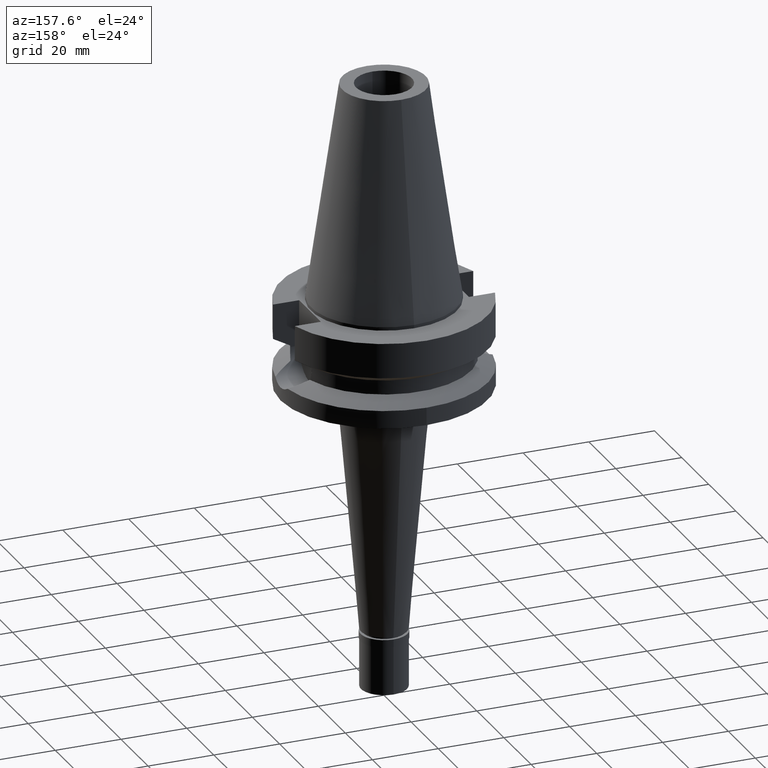
[diagram: clean part render]
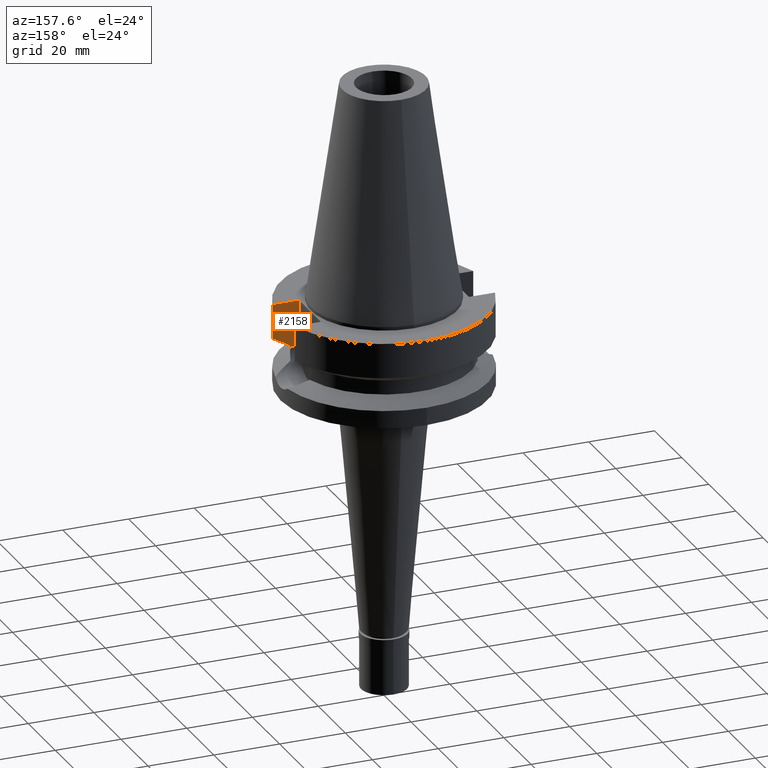
[diagram: same view with one face highlighted and labeled with its STEP entity id]
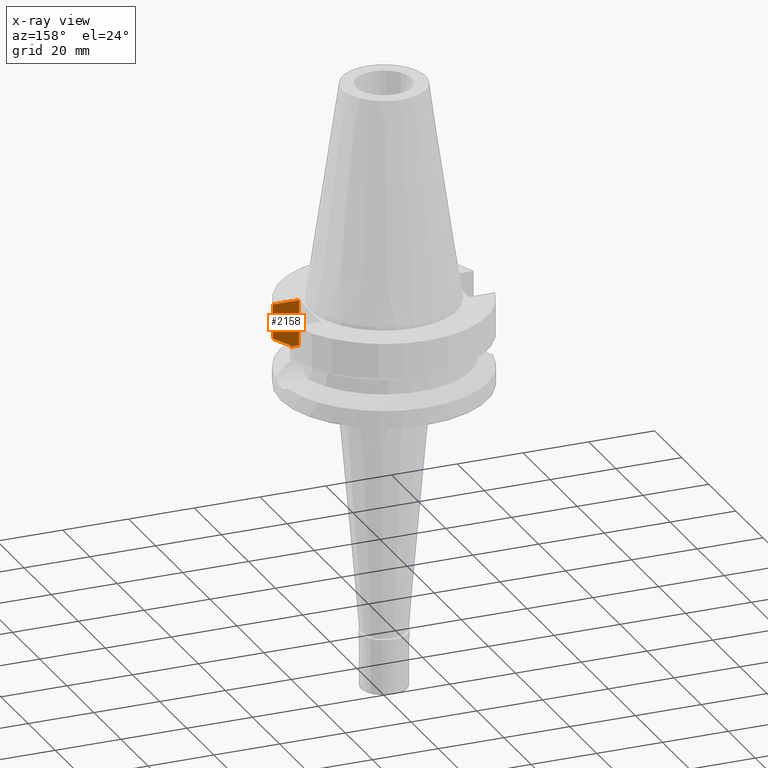
[diagram: x-ray of the same camera — body ghosted, the highlighted face saturated]
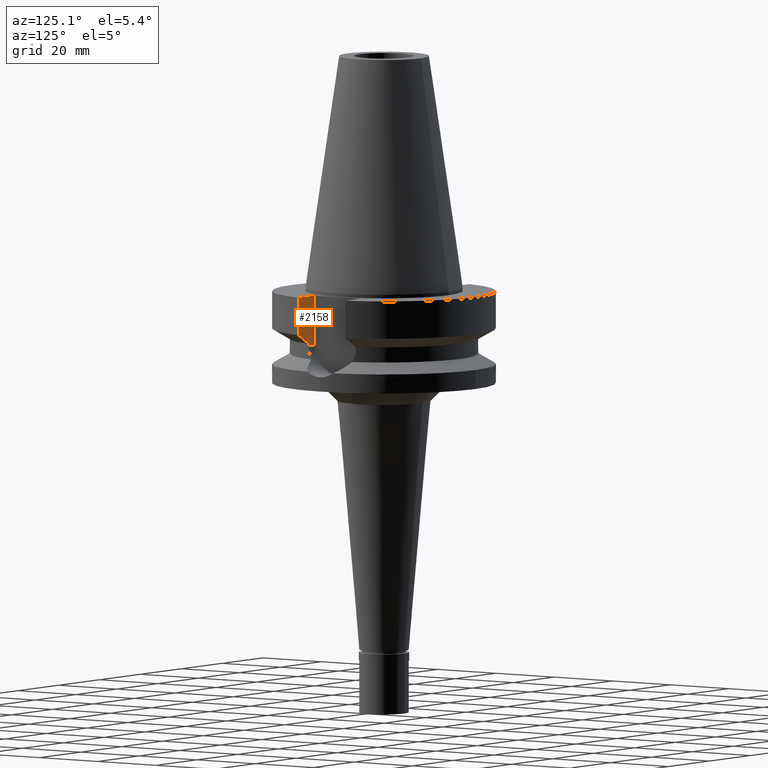
[diagram: same view with one face highlighted and labeled with its STEP entity id]
A machine part, auxiliary view. The second image highlights one B-rep face of the part: STEP entity #2158.
The next image is the same camera in x-ray: the body ghosted, the highlighted face saturated — about 0% of this face is hidden behind the body in this view.
A second angle (auxiliary view) of the same face is appended — the face is thin or edge-on in the first view.
In plain terms, the highlighted planar face has unit normal (0, -1, 0).
Its self-contained STEP definition (entity closure, byte-faithful):
#251 = DIRECTION ( 'NONE',  ( 0.0000000000000000000, -1.000000000000000000, 0.0000000000000000000 ) ) ;
#296 = AXIS2_PLACEMENT_3D ( 'NONE', #1843, #251, #1858 ) ;
#338 = CARTESIAN_POINT ( 'NONE',  ( 22.50000000000000000, -8.050000000000000711, -14.94999999999999929 ) ) ;
#339 = ORIENTED_EDGE ( 'NONE', *, *, #1754, .T. ) ;
#524 = ORIENTED_EDGE ( 'NONE', *, *, #2440, .T. ) ;
#591 = LINE ( 'NONE', #1011, #1329 ) ;
#598 = ORIENTED_EDGE ( 'NONE', *, *, #1942, .T. ) ;
#733 = DIRECTION ( 'NONE',  ( 1.016256658733004335E-06, 3.187351691373015479E-06, -0.9999999999944041429 ) ) ;
#803 = LINE ( 'NONE', #2634, #2466 ) ;
#901 = DIRECTION ( 'NONE',  ( -1.036791478987017605E-07, -3.922289229453068409E-07, -0.9999999999999177325 ) ) ;
#973 = ORIENTED_EDGE ( 'NONE', *, *, #2839, .T. ) ;
#976 = VECTOR ( 'NONE', #1998, 1000.000000000000000 ) ;
#1011 = CARTESIAN_POINT ( 'NONE',  ( 22.50000000000000000, -8.050000000000000711, -1.000000000000000000 ) ) ;
#1016 = CARTESIAN_POINT ( 'NONE',  ( 25.24772266958000344, -8.050000000000000711, -14.94999999999999929 ) ) ;
#1068 = VECTOR ( 'NONE', #901, 1000.000000000000114 ) ;
#1245 = VERTEX_POINT ( 'NONE', #2448 ) ;
#1321 = EDGE_CURVE ( 'NONE', #2016, #1961, #1686, .T. ) ;
#1329 = VECTOR ( 'NONE', #2653, 1000.000000000000000 ) ;
#1344 = CARTESIAN_POINT ( 'NONE',  ( 26.83757728703244894, -8.050003176467452448, -13.57772966041586038 ) ) ;
#1425 = VERTEX_POINT ( 'NONE', #2740 ) ;
#1481 = ORIENTED_EDGE ( 'NONE', *, *, #2349, .T. ) ;
#1514 = VECTOR ( 'NONE', #733, 999.9999999999998863 ) ;
#1551 = CARTESIAN_POINT ( 'NONE',  ( 25.24772266958000344, -8.050000000000000711, -14.45225699861000024 ) ) ;
#1585 = VERTEX_POINT ( 'NONE', #338 ) ;
#1632 = FACE_OUTER_BOUND ( 'NONE', #1760, .T. ) ;
#1686 = B_SPLINE_CURVE_WITH_KNOTS ( 'NONE', 3,
 ( #1551, #1344, #2721, #2658 ),
 .UNSPECIFIED., .F., .F.,
 ( 4, 4 ),
 ( 0.0000000000000000000, 1.000000000000000000 ),
 .UNSPECIFIED. ) ;
#1712 = LINE ( 'NONE', #1016, #976 ) ;
#1732 = DIRECTION ( 'NONE',  ( 0.0000000000000000000, 0.0000000000000000000, 1.000000000000000000 ) ) ;
#1754 = EDGE_CURVE ( 'NONE', #2016, #1425, #1977, .T. ) ;
#1760 = EDGE_LOOP ( 'NONE', ( #1481, #524, #973, #598, #2395, #339 ) ) ;
#1843 = CARTESIAN_POINT ( 'NONE',  ( 22.50000000000000000, -8.050000000000000711, -1.000000000000000000 ) ) ;
#1858 = DIRECTION ( 'NONE',  ( 0.0000000000000000000, 0.0000000000000000000, -1.000000000000000000 ) ) ;
#1882 = VERTEX_POINT ( 'NONE', #2378 ) ;
#1942 = EDGE_CURVE ( 'NONE', #1245, #1961, #2031, .T. ) ;
#1961 = VERTEX_POINT ( 'NONE', #2711 ) ;
#1977 = LINE ( 'NONE', #2304, #1514 ) ;
#1998 = DIRECTION ( 'NONE',  ( -1.000000000000000000, -1.551559937893000172E-14, 0.0000000000000000000 ) ) ;
#2016 = VERTEX_POINT ( 'NONE', #2698 ) ;
#2031 = LINE ( 'NONE', #2453, #1068 ) ;
#2158 = ADVANCED_FACE ( 'NONE', ( #1632 ), #2781, .F. ) ;
#2304 = CARTESIAN_POINT ( 'NONE',  ( 25.24772216373000333, -8.050001586521000618, -14.45224487620000176 ) ) ;
#2349 = EDGE_CURVE ( 'NONE', #1425, #1585, #1712, .T. ) ;
#2378 = CARTESIAN_POINT ( 'NONE',  ( 22.50000000000000000, -8.050000000000000711, -1.000000000000000000 ) ) ;
#2395 = ORIENTED_EDGE ( 'NONE', *, *, #1321, .F. ) ;
#2440 = EDGE_CURVE ( 'NONE', #1585, #1882, #803, .T. ) ;
#2448 = CARTESIAN_POINT ( 'NONE',  ( 30.45402272279000044, -8.050000000000000711, -1.000000000000000000 ) ) ;
#2453 = CARTESIAN_POINT ( 'NONE',  ( 30.45402272279000044, -8.050000000000000711, -1.000000000000000000 ) ) ;
#2466 = VECTOR ( 'NONE', #1732, 1000.000000000000000 ) ;
#2634 = CARTESIAN_POINT ( 'NONE',  ( 22.50000000000000000, -8.050000000000000711, -14.94999999999999929 ) ) ;
#2653 = DIRECTION ( 'NONE',  ( 1.000000000000000000, 3.573249715389999860E-14, 0.0000000000000000000 ) ) ;
#2658 = CARTESIAN_POINT ( 'NONE',  ( 30.45402272279000044, -8.049999999999000622, -11.56550565266999975 ) ) ;
#2698 = CARTESIAN_POINT ( 'NONE',  ( 25.24772266958000344, -8.050000000000000711, -14.45225699861000024 ) ) ;
#2711 = CARTESIAN_POINT ( 'NONE',  ( 30.45402272279000044, -8.049999999999000622, -11.56550565266999975 ) ) ;
#2721 = CARTESIAN_POINT ( 'NONE',  ( 28.57294950172530790, -8.050008281445975911, -12.61547991167495120 ) ) ;
#2740 = CARTESIAN_POINT ( 'NONE',  ( 25.24772266958000344, -8.050000000000000711, -14.94999999999999929 ) ) ;
#2781 = PLANE ( 'NONE',  #296 ) ;
#2839 = EDGE_CURVE ( 'NONE', #1882, #1245, #591, .T. ) ;